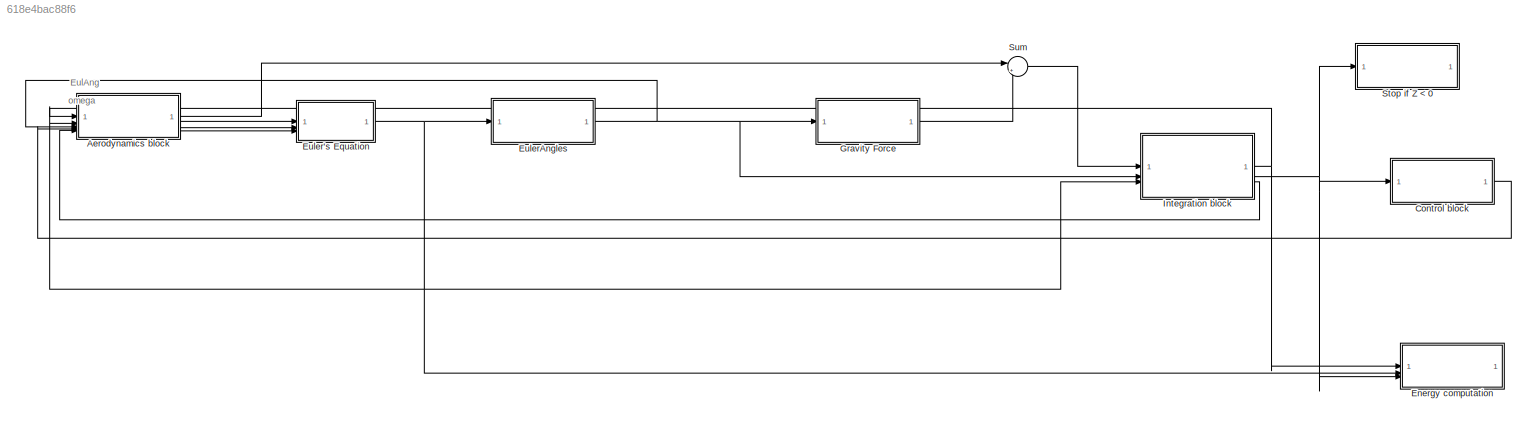
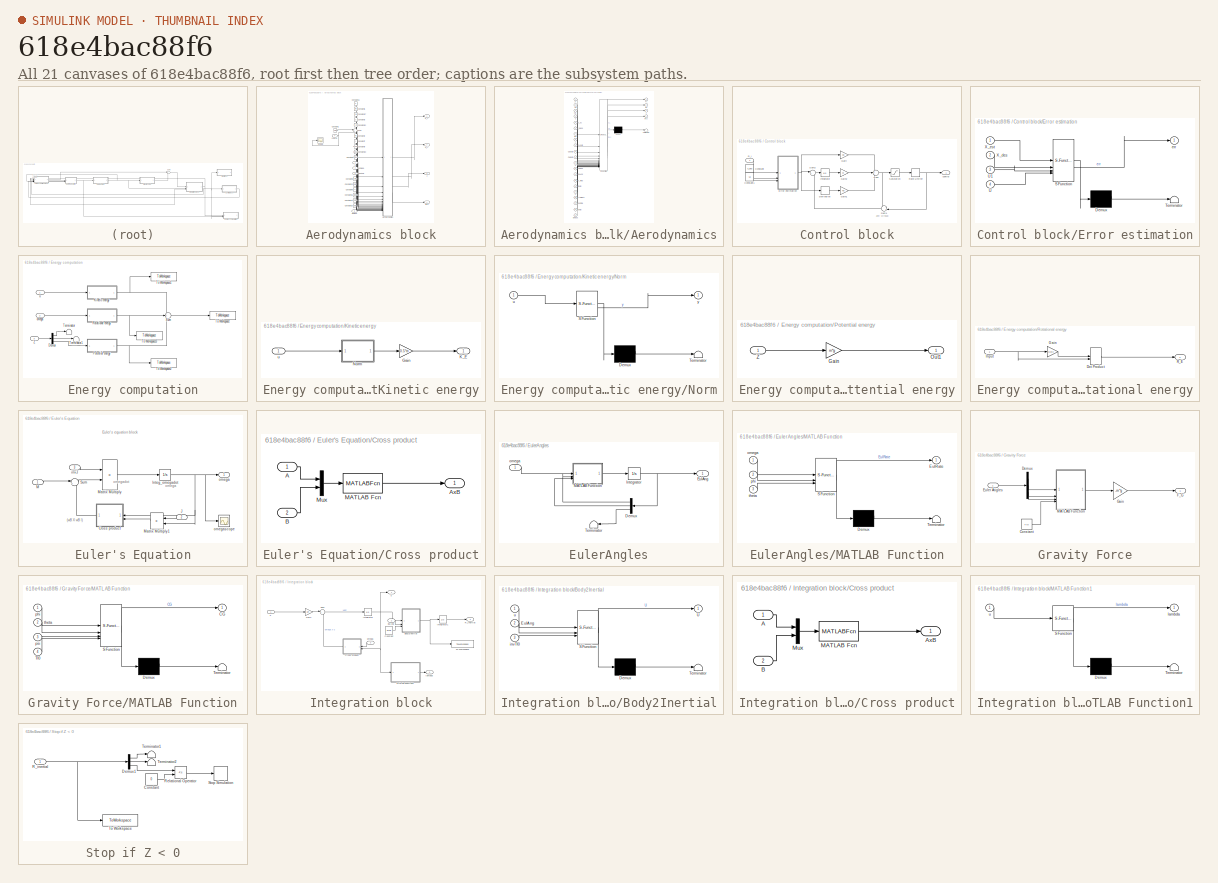
[diagram: thumbnail index - all 21 canvases of the model, root first then tree order]
MODEL slx_618e4bac88f6
KIND model
CONFIG AbsTol = auto
CONFIG EnableMultiTasking = off
CONFIG FixedStep = dt
CONFIG MaxStep = auto
CONFIG MinStep = auto
CONFIG RelTol = 1e-3
CONFIG SampleTimeConstraint = Unconstrained
CONFIG SolverName = ode4
CONFIG StartTime = 0.0
CONFIG StopTime = t
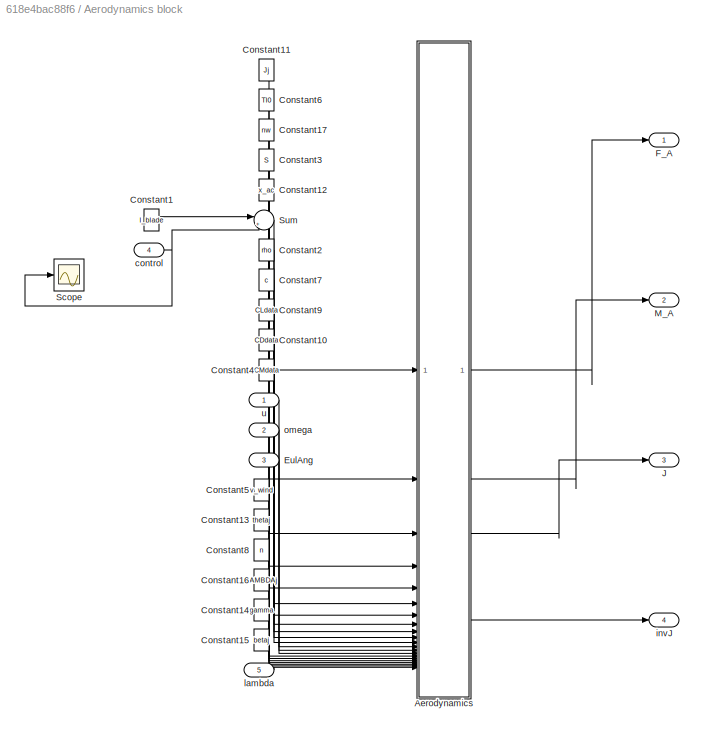
BLOCK [SubSystem] Aerodynamics block
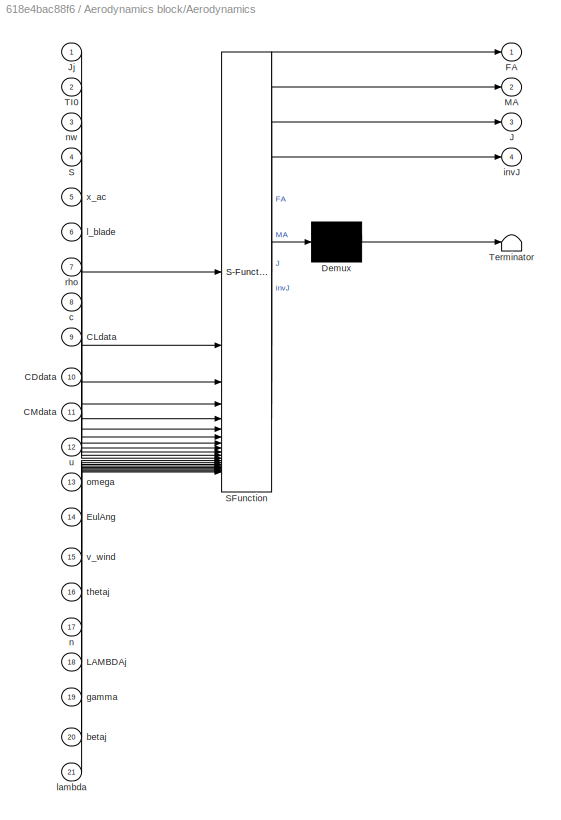
BLOCK [SubSystem] Aerodynamics block/Aerodynamics
  ErrorFcn = Stateflow.Translate.translate
  LibrarySourceBlock = simulink/User-Defined\nFunctions/MATLAB Function
  PermitHierarchicalResolution = ExplicitOnly
  SFBlockType = MATLAB Function
  TreatAsAtomicUnit = on
BLOCK [Demux] Aerodynamics block/Aerodynamics/ Demux 
  Outputs = 1
BLOCK [S-Function] Aerodynamics block/Aerodynamics/ SFunction 
  EnableBusSupport = on
  FunctionName = sf_sfun
  PortCounts = [21 5]
  SFcnIsStateOwnerBlock = off
  SFunctionDeploymentMode = off
  Tag = Stateflow S-Function 1
BLOCK [Terminator] Aerodynamics block/Aerodynamics/ Terminator 
BLOCK [Inport] Aerodynamics block/Aerodynamics/CDdata
  Port = 10
BLOCK [Inport] Aerodynamics block/Aerodynamics/CLdata
  Port = 9
BLOCK [Inport] Aerodynamics block/Aerodynamics/CMdata
  Port = 11
BLOCK [Inport] Aerodynamics block/Aerodynamics/EulAng
  Port = 14
BLOCK [Outport] Aerodynamics block/Aerodynamics/FA
BLOCK [Outport] Aerodynamics block/Aerodynamics/J
  Port = 3
BLOCK [Inport] Aerodynamics block/Aerodynamics/Jj
BLOCK [Inport] Aerodynamics block/Aerodynamics/LAMBDAj
  Port = 18
BLOCK [Outport] Aerodynamics block/Aerodynamics/MA
  Port = 2
BLOCK [Inport] Aerodynamics block/Aerodynamics/S
  Port = 4
BLOCK [Inport] Aerodynamics block/Aerodynamics/TI0
  Port = 2
BLOCK [Inport] Aerodynamics block/Aerodynamics/betaj
  Port = 20
BLOCK [Inport] Aerodynamics block/Aerodynamics/c
  Port = 8
BLOCK [Inport] Aerodynamics block/Aerodynamics/gamma
  Port = 19
BLOCK [Outport] Aerodynamics block/Aerodynamics/invJ
  Port = 4
BLOCK [Inport] Aerodynamics block/Aerodynamics/l_blade
  Port = 6
BLOCK [Inport] Aerodynamics block/Aerodynamics/lambda
  Port = 21
BLOCK [Inport] Aerodynamics block/Aerodynamics/n
  Port = 17
BLOCK [Inport] Aerodynamics block/Aerodynamics/nw
  Port = 3
BLOCK [Inport] Aerodynamics block/Aerodynamics/omega
  Port = 13
BLOCK [Inport] Aerodynamics block/Aerodynamics/rho
  Port = 7
BLOCK [Inport] Aerodynamics block/Aerodynamics/thetaj
  Port = 16
BLOCK [Inport] Aerodynamics block/Aerodynamics/u
  Port = 12
BLOCK [Inport] Aerodynamics block/Aerodynamics/v_wind
  Port = 15
BLOCK [Inport] Aerodynamics block/Aerodynamics/x_ac
  Port = 5
BLOCK [Constant] Aerodynamics block/Constant1
  Value = l_blade
BLOCK [Constant] Aerodynamics block/Constant10
  Value = CDdata
BLOCK [Constant] Aerodynamics block/Constant11
  Value = Jj
BLOCK [Constant] Aerodynamics block/Constant12
  Value = x_ac
BLOCK [Constant] Aerodynamics block/Constant13
  Value = thetaj
BLOCK [Constant] Aerodynamics block/Constant14
  Value = gamma
BLOCK [Constant] Aerodynamics block/Constant15
  Value = betaj
BLOCK [Constant] Aerodynamics block/Constant16
  Value = LAMBDAj
BLOCK [Constant] Aerodynamics block/Constant17
  Value = nw
BLOCK [Constant] Aerodynamics block/Constant2
  Value = rho
BLOCK [Constant] Aerodynamics block/Constant3
  Value = S
BLOCK [Constant] Aerodynamics block/Constant4
  Value = CMdata
BLOCK [Constant] Aerodynamics block/Constant5
  Value = v_wind
BLOCK [Constant] Aerodynamics block/Constant6
  Value = TI0
BLOCK [Constant] Aerodynamics block/Constant7
  Value = c
BLOCK [Constant] Aerodynamics block/Constant8
  Value = n
BLOCK [Constant] Aerodynamics block/Constant9
  Value = CLdata
BLOCK [Inport] Aerodynamics block/EulAng
  Port = 3
BLOCK [Outport] Aerodynamics block/F_A
BLOCK [Outport] Aerodynamics block/J
  Port = 3
BLOCK [Outport] Aerodynamics block/M_A
  Port = 2
BLOCK [Scope] Aerodynamics block/Scope
  Floating = off
  NumInputPorts = 1
  ScopeSpecificationString = Simulink.scopes.TimeScopeBlockCfg('CurrentConfiguration', extmgr.ConfigurationSet(extmgr.Configuration('Core','General UI',true),extmgr.Configuration('Core','Source UI',true),extmgr.Configuration('Sources','WiredSimulink',true,'DataLoggingVariableName','ScopeData1'),extmgr.Configuration('Visuals','Time Domain',true,'SerializedDisplays',{struct('MinYLimReal','-1.00000','MaxYLimReal','1.00000','YLab...<+1399ch>
BLOCK [Sum] Aerodynamics block/Sum
  Inputs = |++
BLOCK [Inport] Aerodynamics block/control
  Port = 4
BLOCK [Outport] Aerodynamics block/invJ
  Port = 4
BLOCK [Inport] Aerodynamics block/lambda
  Port = 5
BLOCK [Inport] Aerodynamics block/omega
  Port = 2
BLOCK [Inport] Aerodynamics block/u
BLOCK [SubSystem] Control block
BLOCK [Constant] Control block/Constant
  Value = X_des
BLOCK [Constant] Control block/Constant1
  Value = U1
BLOCK [Derivative] Control block/Derivative
BLOCK [SubSystem] Control block/Error estimation
  ErrorFcn = Stateflow.Translate.translate
  LibrarySourceBlock = simulink/User-Defined\nFunctions/MATLAB Function
  PermitHierarchicalResolution = ExplicitOnly
  SFBlockType = MATLAB Function
  TreatAsAtomicUnit = on
BLOCK [Demux] Control block/Error estimation/ Demux 
  Outputs = 1
BLOCK [S-Function] Control block/Error estimation/ SFunction 
  EnableBusSupport = on
  FunctionName = sf_sfun
  PortCounts = [4 2]
  SFcnIsStateOwnerBlock = off
  SFunctionDeploymentMode = off
  Tag = Stateflow S-Function 5
BLOCK [Terminator] Control block/Error estimation/ Terminator 
BLOCK [Inport] Control block/Error estimation/U
  Port = 4
BLOCK [Inport] Control block/Error estimation/U1
  Port = 3
BLOCK [Inport] Control block/Error estimation/X_des
  Port = 2
BLOCK [Inport] Control block/Error estimation/X_est
BLOCK [Outport] Control block/Error estimation/err
BLOCK [Gain] Control block/Gain
  Gain = Kp
BLOCK [Gain] Control block/Gain1
  Gain = Kd
BLOCK [Gain] Control block/Gain2
  Gain = Ki
BLOCK [Integrator] Control block/Integrator
  LimitOutput = on
  LowerSaturationLimit = -pi/Ki
  UpperSaturationLimit = pi/Ki
BLOCK [Inport] Control block/R_I
BLOCK [RateLimiter] Control block/Rate Limiter
  FallingSlewLimit = -l_rate
  RisingSlewLimit = l_rate
  SampleTimeMode = inherited
BLOCK [Saturate] Control block/Saturation
  LowerLimit = min_l
  UpperLimit = max_l
BLOCK [Sum] Control block/Sum
  Inputs = +++
BLOCK [Sum] Control block/Sum1
  Inputs = -+|
BLOCK [Sum] Control block/Sum2
  Inputs = |++
BLOCK [Outport] Control block/control
BLOCK [SubSystem] Energy computation
  Commented = on
BLOCK [Demux] Energy computation/Demux
  Outputs = 3
BLOCK [SubSystem] Energy computation/Kinetic energy
BLOCK [Gain] Energy computation/Kinetic energy/Gain
  Gain = 0.5*m
BLOCK [Outport] Energy computation/Kinetic energy/K_E
BLOCK [SubSystem] Energy computation/Kinetic energy/Norm
  ErrorFcn = Stateflow.Translate.translate
  LibrarySourceBlock = simulink/User-Defined\nFunctions/MATLAB Function
  PermitHierarchicalResolution = ExplicitOnly
  SFBlockType = MATLAB Function
  TreatAsAtomicUnit = on
BLOCK [Demux] Energy computation/Kinetic energy/Norm/ Demux 
  Outputs = 1
BLOCK [S-Function] Energy computation/Kinetic energy/Norm/ SFunction 
  EnableBusSupport = on
  FunctionName = sf_sfun
  PortCounts = [1 2]
  SFcnIsStateOwnerBlock = off
  SFunctionDeploymentMode = off
  Tag = Stateflow S-Function 6
BLOCK [Terminator] Energy computation/Kinetic energy/Norm/ Terminator 
BLOCK [Inport] Energy computation/Kinetic energy/Norm/u
BLOCK [Outport] Energy computation/Kinetic energy/Norm/y
BLOCK [Inport] Energy computation/Kinetic energy/u
BLOCK [SubSystem] Energy computation/Potential energy
BLOCK [Gain] Energy computation/Potential energy/Gain
  Gain = m*g
BLOCK [Outport] Energy computation/Potential energy/Out1
BLOCK [Inport] Energy computation/Potential energy/Z
BLOCK [SubSystem] Energy computation/Rotational energy
BLOCK [DotProduct] Energy computation/Rotational energy/Dot Product
  OutDataTypeStr = Inherit: Inherit via internal rule
BLOCK [Gain] Energy computation/Rotational energy/Gain
  Gain = 0.5*J
  Multiplication = Matrix(u*K)
BLOCK [Inport] Energy computation/Rotational energy/Input
BLOCK [Outport] Energy computation/Rotational energy/R_E
BLOCK [Sum] Energy computation/Sum
  Inputs = +++
BLOCK [Terminator] Energy computation/Terminator
BLOCK [Terminator] Energy computation/Terminator1
BLOCK [ToWorkspace] Energy computation/To Workspace
  FixptAsFi = on
  MaxDataPoints = inf
  SampleTime = -1
  SaveFormat = Timeseries
  VariableName = E
BLOCK [ToWorkspace] Energy computation/To Workspace1
  FixptAsFi = on
  MaxDataPoints = inf
  SampleTime = -1
  SaveFormat = Timeseries
  VariableName = K_E
BLOCK [ToWorkspace] Energy computation/To Workspace2
  FixptAsFi = on
  MaxDataPoints = inf
  SampleTime = -1
  SaveFormat = Timeseries
  VariableName = P_E
BLOCK [ToWorkspace] Energy computation/To Workspace3
  FixptAsFi = on
  MaxDataPoints = inf
  SampleTime = -1
  SaveFormat = Timeseries
  VariableName = R_E
BLOCK [Inport] Energy computation/Z
  Port = 3
BLOCK [Inport] Energy computation/omega
  Port = 2
BLOCK [Inport] Energy computation/u
BLOCK [SubSystem] Euler's Equation
BLOCK [SubSystem] Euler's Equation/Cross product
BLOCK [Inport] Euler's Equation/Cross product/A
BLOCK [Outport] Euler's Equation/Cross product/AxB
  VectorParamsAs1DForOutWhenUnconnected = off
BLOCK [Inport] Euler's Equation/Cross product/B
  Port = 2
BLOCK [MATLABFcn] Euler's Equation/Cross product/MATLAB Fcn
  MATLABFcn = cross(u(1:3),u(4:6))
BLOCK [Mux] Euler's Equation/Cross product/Mux
  DisplayOption = bar
  Inputs = 2
BLOCK [Integrator] Euler's Equation/Integ_omegadot
  InitialCondition = omega0
BLOCK [Inport] Euler's Equation/J
  Port = 2
BLOCK [Inport] Euler's Equation/M
BLOCK [Product] Euler's Equation/Matrix Multiply
  Multiplication = Matrix(*)
BLOCK [Product] Euler's Equation/Matrix Multiply1
  Multiplication = Matrix(*)
BLOCK [Sum] Euler's Equation/Sum
  Inputs = |+-
BLOCK [Inport] Euler's Equation/invJ
  Port = 3
BLOCK [Outport] Euler's Equation/omega
  VectorParamsAs1DForOutWhenUnconnected = off
BLOCK [Scope] Euler's Equation/omegascope
  Floating = off
  NumInputPorts = 1
  ScopeSpecificationString = Simulink.scopes.TimeScopeBlockCfg('CurrentConfiguration', extmgr.ConfigurationSet(extmgr.Configuration('Core','General UI',true),extmgr.Configuration('Core','Source UI',true),extmgr.Configuration('Sources','WiredSimulink',true,'DataLoggingVariableName','ScopeData1'),extmgr.Configuration('Visuals','Time Domain',true,'SerializedDisplays',{struct('MinYLimReal','-16.53032','MaxYLimReal','75.05612','YL...<+1558ch>
BLOCK [SubSystem] EulerAngles
BLOCK [Demux] EulerAngles/Demux
  Outputs = 3
BLOCK [Outport] EulerAngles/EulAng
BLOCK [Integrator] EulerAngles/Integrator
  InitialCondition = Eul0
BLOCK [SubSystem] EulerAngles/MATLAB Function
  ErrorFcn = Stateflow.Translate.translate
  LibrarySourceBlock = simulink/User-Defined\nFunctions/MATLAB Function
  PermitHierarchicalResolution = ExplicitOnly
  SFBlockType = MATLAB Function
  TreatAsAtomicUnit = on
BLOCK [Demux] EulerAngles/MATLAB Function/ Demux 
  Outputs = 1
BLOCK [S-Function] EulerAngles/MATLAB Function/ SFunction 
  EnableBusSupport = on
  FunctionName = sf_sfun
  PortCounts = [3 2]
  SFcnIsStateOwnerBlock = off
  SFunctionDeploymentMode = off
  Tag = Stateflow S-Function 4
BLOCK [Terminator] EulerAngles/MATLAB Function/ Terminator 
BLOCK [Outport] EulerAngles/MATLAB Function/EulRate
BLOCK [Inport] EulerAngles/MATLAB Function/omega
BLOCK [Inport] EulerAngles/MATLAB Function/phi
  Port = 2
BLOCK [Inport] EulerAngles/MATLAB Function/theta
  Port = 3
BLOCK [Terminator] EulerAngles/Terminator
BLOCK [Inport] EulerAngles/omega
BLOCK [SubSystem] Gravity Force
BLOCK [Constant] Gravity Force/Constant
  Value = TI0
BLOCK [Demux] Gravity Force/Demux
  Outputs = 3
BLOCK [Inport] Gravity Force/Euler Angles
BLOCK [Outport] Gravity Force/F_G
BLOCK [Gain] Gravity Force/Gain
  Gain = -m*g
BLOCK [SubSystem] Gravity Force/MATLAB Function
  ErrorFcn = Stateflow.Translate.translate
  LibrarySourceBlock = simulink/User-Defined\nFunctions/MATLAB Function
  PermitHierarchicalResolution = ExplicitOnly
  SFBlockType = MATLAB Function
  TreatAsAtomicUnit = on
BLOCK [Demux] Gravity Force/MATLAB Function/ Demux 
  Outputs = 1
BLOCK [S-Function] Gravity Force/MATLAB Function/ SFunction 
  EnableBusSupport = on
  FunctionName = sf_sfun
  PortCounts = [4 2]
  SFcnIsStateOwnerBlock = off
  SFunctionDeploymentMode = off
  Tag = Stateflow S-Function 2
BLOCK [Terminator] Gravity Force/MATLAB Function/ Terminator 
BLOCK [Outport] Gravity Force/MATLAB Function/CG
BLOCK [Inport] Gravity Force/MATLAB Function/TI0
  Port = 4
BLOCK [Inport] Gravity Force/MATLAB Function/phi
BLOCK [Inport] Gravity Force/MATLAB Function/psi
  Port = 3
BLOCK [Inport] Gravity Force/MATLAB Function/theta
  Port = 2
BLOCK [SubSystem] Integration block
BLOCK [SubSystem] Integration block/Body2Inertial
  ErrorFcn = Stateflow.Translate.translate
  LibrarySourceBlock = simulink/User-Defined\nFunctions/MATLAB Function
  PermitHierarchicalResolution = ExplicitOnly
  SFBlockType = MATLAB Function
  TreatAsAtomicUnit = on
BLOCK [Demux] Integration block/Body2Inertial/ Demux 
  Outputs = 1
BLOCK [S-Function] Integration block/Body2Inertial/ SFunction 
  EnableBusSupport = on
  FunctionName = sf_sfun
  PortCounts = [3 2]
  SFcnIsStateOwnerBlock = off
  SFunctionDeploymentMode = off
  Tag = Stateflow S-Function 3
BLOCK [Terminator] Integration block/Body2Inertial/ Terminator 
BLOCK [Inport] Integration block/Body2Inertial/EulAng
  Port = 2
BLOCK [Outport] Integration block/Body2Inertial/U
BLOCK [Inport] Integration block/Body2Inertial/invTI0
  Port = 3
BLOCK [Inport] Integration block/Body2Inertial/u
BLOCK [Constant] Integration block/Constant
  Value = invTI0
BLOCK [SubSystem] Integration block/Cross product
BLOCK [Inport] Integration block/Cross product/A
BLOCK [Outport] Integration block/Cross product/AxB
  VectorParamsAs1DForOutWhenUnconnected = off
BLOCK [Inport] Integration block/Cross product/B
  Port = 2
BLOCK [MATLABFcn] Integration block/Cross product/MATLAB Fcn
  MATLABFcn = cross(u(1:3),u(4:6))
BLOCK [Mux] Integration block/Cross product/Mux
  DisplayOption = bar
  Inputs = 2
BLOCK [Inport] Integration block/EulAng
  Port = 2
BLOCK [Inport] Integration block/F
BLOCK [Gain] Integration block/Gain
  Gain = 1./m
BLOCK [Integrator] Integration block/Integrator
  InitialCondition = u0
BLOCK [Integrator] Integration block/Integrator1
  InitialCondition = R_pos0
BLOCK [SubSystem] Integration block/MATLAB Function1
  ErrorFcn = Stateflow.Translate.translate
  LibrarySourceBlock = simulink/User-Defined\nFunctions/MATLAB Function
  PermitHierarchicalResolution = ExplicitOnly
  SFBlockType = MATLAB Function
  TreatAsAtomicUnit = on
BLOCK [Demux] Integration block/MATLAB Function1/ Demux 
  Outputs = 1
BLOCK [S-Function] Integration block/MATLAB Function1/ SFunction 
  EnableBusSupport = on
  FunctionName = sf_sfun
  PortCounts = [1 2]
  SFcnIsStateOwnerBlock = off
  SFunctionDeploymentMode = off
  Tag = Stateflow S-Function 7
BLOCK [Terminator] Integration block/MATLAB Function1/ Terminator 
BLOCK [Outport] Integration block/MATLAB Function1/lambda
BLOCK [Inport] Integration block/MATLAB Function1/u
BLOCK [Outport] Integration block/R_inertial
  Port = 2
BLOCK [Sum] Integration block/Sum
  Inputs = |+-
BLOCK [ToWorkspace] Integration block/To Workspace
  FixptAsFi = on
  MaxDataPoints = inf
  SampleTime = -1
  VariableName = U
BLOCK [Outport] Integration block/lambda
  Port = 3
BLOCK [Inport] Integration block/omega
  Port = 3
BLOCK [Outport] Integration block/u
BLOCK [SubSystem] Stop if Z < 0
BLOCK [Constant] Stop if Z < 0/Constant
  Value = 0
BLOCK [Demux] Stop if Z < 0/Demux1
  Outputs = 3
BLOCK [Inport] Stop if Z < 0/R_inertial
BLOCK [RelationalOperator] Stop if Z < 0/Relational Operator
  InputSameDT = off
  Operator = <=
  OutDataTypeStr = boolean
  RndMeth = Simplest
BLOCK [Stop] Stop if Z < 0/Stop Simulation
BLOCK [Terminator] Stop if Z < 0/Terminator1
BLOCK [Terminator] Stop if Z < 0/Terminator2
BLOCK [ToWorkspace] Stop if Z < 0/To Workspace
  FixptAsFi = on
  MaxDataPoints = inf
  SampleTime = -1
  VariableName = R_inertial
BLOCK [Sum] Sum
  Inputs = |++
ANNOTATION (root): EulAng
ANNOTATION (root): omega
ANNOTATION Control block: anti windup
ANNOTATION Euler's Equation: omegadot
ANNOTATION Euler's Equation: Euler's equation block
ANNOTATION Euler's Equation: (wB X wB I)
ANNOTATION Euler's Equation: omega
LINE Aerodynamics block/Aerodynamics:1 -> Aerodynamics block/F_A:1
LINE Aerodynamics block/Aerodynamics:2 -> Aerodynamics block/M_A:1
LINE Aerodynamics block/Aerodynamics:3 -> Aerodynamics block/J:1
LINE Aerodynamics block/Aerodynamics:4 -> Aerodynamics block/invJ:1
LINE Aerodynamics block/Constant10:1 -> Aerodynamics block/Aerodynamics:10
LINE Aerodynamics block/Constant11:1 -> Aerodynamics block/Aerodynamics:1
LINE Aerodynamics block/Constant12:1 -> Aerodynamics block/Aerodynamics:5
LINE Aerodynamics block/Constant13:1 -> Aerodynamics block/Aerodynamics:16
LINE Aerodynamics block/Constant14:1 -> Aerodynamics block/Aerodynamics:19
LINE Aerodynamics block/Constant15:1 -> Aerodynamics block/Aerodynamics:20
LINE Aerodynamics block/Constant16:1 -> Aerodynamics block/Aerodynamics:18
LINE Aerodynamics block/Constant17:1 -> Aerodynamics block/Aerodynamics:3
LINE Aerodynamics block/Constant1:1 -> Aerodynamics block/Sum:1
LINE Aerodynamics block/Constant2:1 -> Aerodynamics block/Aerodynamics:7
LINE Aerodynamics block/Constant3:1 -> Aerodynamics block/Aerodynamics:4
LINE Aerodynamics block/Constant4:1 -> Aerodynamics block/Aerodynamics:11
LINE Aerodynamics block/Constant5:1 -> Aerodynamics block/Aerodynamics:15
LINE Aerodynamics block/Constant6:1 -> Aerodynamics block/Aerodynamics:2
LINE Aerodynamics block/Constant7:1 -> Aerodynamics block/Aerodynamics:8
LINE Aerodynamics block/Constant8:1 -> Aerodynamics block/Aerodynamics:17
LINE Aerodynamics block/Constant9:1 -> Aerodynamics block/Aerodynamics:9
LINE Aerodynamics block/EulAng:1 -> Aerodynamics block/Aerodynamics:14
LINE Aerodynamics block/Sum:1 -> Aerodynamics block/Aerodynamics:6
NET Aerodynamics block/control:1 -> Aerodynamics block/Scope:1, Aerodynamics block/Sum:2
LINE Aerodynamics block/lambda:1 -> Aerodynamics block/Aerodynamics:21
LINE Aerodynamics block/omega:1 -> Aerodynamics block/Aerodynamics:13
LINE Aerodynamics block/u:1 -> Aerodynamics block/Aerodynamics:12
LINE Aerodynamics block:1 -> Sum:1
LINE Aerodynamics block:2 -> Euler's Equation:1
LINE Aerodynamics block:3 -> Euler's Equation:2
LINE Aerodynamics block:4 -> Euler's Equation:3
LINE Control block/Constant1:1 -> Control block/Error estimation:3
LINE Control block/Constant:1 -> Control block/Error estimation:2
LINE Control block/Derivative:1 -> Control block/Gain1:1
NET Control block/Error estimation:1 -> Control block/Derivative:1, Control block/Gain:1, Control block/Sum2:1
LINE Control block/Gain1:1 -> Control block/Sum:3
LINE Control block/Gain2:1 -> Control block/Sum:2
LINE Control block/Gain:1 -> Control block/Sum:1
LINE Control block/Integrator:1 -> Control block/Gain2:1
LINE Control block/R_I:1 -> Control block/Error estimation:1
NET Control block/Rate Limiter:1 -> Control block/Sum1:2, Control block/control:1
LINE Control block/Saturation:1 -> Control block/Rate Limiter:1
LINE Control block/Sum1:1 -> Control block/Sum2:2
LINE Control block/Sum2:1 -> Control block/Integrator:1
NET Control block/Sum:1 -> Control block/Saturation:1, Control block/Sum1:1
LINE Control block:1 -> Aerodynamics block:4
LINE Energy computation/Demux:1 -> Energy computation/Terminator:1
LINE Energy computation/Demux:2 -> Energy computation/Terminator1:1
LINE Energy computation/Demux:3 -> Energy computation/Potential energy:1
LINE Energy computation/Kinetic energy/Gain:1 -> Energy computation/Kinetic energy/K_E:1
LINE Energy computation/Kinetic energy/Norm:1 -> Energy computation/Kinetic energy/Gain:1
LINE Energy computation/Kinetic energy/u:1 -> Energy computation/Kinetic energy/Norm:1
NET Energy computation/Kinetic energy:1 -> Energy computation/Sum:1, Energy computation/To Workspace1:1
LINE Energy computation/Potential energy/Gain:1 -> Energy computation/Potential energy/Out1:1
LINE Energy computation/Potential energy/Z:1 -> Energy computation/Potential energy/Gain:1
NET Energy computation/Potential energy:1 -> Energy computation/Sum:3, Energy computation/To Workspace2:1
LINE Energy computation/Rotational energy/Dot Product:1 -> Energy computation/Rotational energy/R_E:1
LINE Energy computation/Rotational energy/Gain:1 -> Energy computation/Rotational energy/Dot Product:1
NET Energy computation/Rotational energy/Input:1 -> Energy computation/Rotational energy/Dot Product:2, Energy computation/Rotational energy/Gain:1
NET Energy computation/Rotational energy:1 -> Energy computation/Sum:2, Energy computation/To Workspace3:1
LINE Energy computation/Sum:1 -> Energy computation/To Workspace:1
LINE Energy computation/Z:1 -> Energy computation/Demux:1
LINE Energy computation/omega:1 -> Energy computation/Rotational energy:1
LINE Energy computation/u:1 -> Energy computation/Kinetic energy:1
LINE Euler's Equation/Cross product/A:1 -> Euler's Equation/Cross product/Mux:1
LINE Euler's Equation/Cross product/B:1 -> Euler's Equation/Cross product/Mux:2
LINE Euler's Equation/Cross product/MATLAB Fcn:1 -> Euler's Equation/Cross product/AxB:1
LINE Euler's Equation/Cross product/Mux:1 -> Euler's Equation/Cross product/MATLAB Fcn:1
LINE Euler's Equation/Cross product:1 -> Euler's Equation/Sum:2
NET Euler's Equation/Integ_omegadot:1 -> Euler's Equation/Cross product:1, Euler's Equation/Matrix Multiply1:2, Euler's Equation/omega:1, Euler's Equation/omegascope:1
LINE Euler's Equation/J:1 -> Euler's Equation/Matrix Multiply1:1
LINE Euler's Equation/M:1 -> Euler's Equation/Sum:1
LINE Euler's Equation/Matrix Multiply1:1 -> Euler's Equation/Cross product:2
LINE Euler's Equation/Matrix Multiply:1 -> Euler's Equation/Integ_omegadot:1
LINE Euler's Equation/Sum:1 -> Euler's Equation/Matrix Multiply:2
LINE Euler's Equation/invJ:1 -> Euler's Equation/Matrix Multiply:1
NET Euler's Equation:1 -> Aerodynamics block:2, Energy computation:2, EulerAngles:1, Integration block:3
LINE EulerAngles/Demux:1 -> EulerAngles/MATLAB Function:2
LINE EulerAngles/Demux:2 -> EulerAngles/MATLAB Function:3
LINE EulerAngles/Demux:3 -> EulerAngles/Terminator:1
NET EulerAngles/Integrator:1 -> EulerAngles/Demux:1, EulerAngles/EulAng:1
LINE EulerAngles/MATLAB Function:1 -> EulerAngles/Integrator:1
LINE EulerAngles/omega:1 -> EulerAngles/MATLAB Function:1
NET EulerAngles:1 -> Aerodynamics block:3, Gravity Force:1, Integration block:2
LINE Gravity Force/Constant:1 -> Gravity Force/MATLAB Function:4
LINE Gravity Force/Demux:1 -> Gravity Force/MATLAB Function:1
LINE Gravity Force/Demux:2 -> Gravity Force/MATLAB Function:2
LINE Gravity Force/Demux:3 -> Gravity Force/MATLAB Function:3
LINE Gravity Force/Euler Angles:1 -> Gravity Force/Demux:1
LINE Gravity Force/Gain:1 -> Gravity Force/F_G:1
LINE Gravity Force/MATLAB Function:1 -> Gravity Force/Gain:1
LINE Gravity Force:1 -> Sum:2
NET Integration block/Body2Inertial:1 -> Integration block/Integrator1:1, Integration block/To Workspace:1
LINE Integration block/Constant:1 -> Integration block/Body2Inertial:3
LINE Integration block/Cross product/A:1 -> Integration block/Cross product/Mux:1
LINE Integration block/Cross product/B:1 -> Integration block/Cross product/Mux:2
LINE Integration block/Cross product/MATLAB Fcn:1 -> Integration block/Cross product/AxB:1
LINE Integration block/Cross product/Mux:1 -> Integration block/Cross product/MATLAB Fcn:1
LINE Integration block/Cross product:1 -> Integration block/Sum:2
LINE Integration block/EulAng:1 -> Integration block/Body2Inertial:2
LINE Integration block/F:1 -> Integration block/Gain:1
LINE Integration block/Gain:1 -> Integration block/Sum:1
LINE Integration block/Integrator1:1 -> Integration block/R_inertial:1
NET Integration block/Integrator:1 -> Integration block/Body2Inertial:1, Integration block/Cross product:2, Integration block/MATLAB Function1:1, Integration block/u:1
LINE Integration block/MATLAB Function1:1 -> Integration block/lambda:1
LINE Integration block/Sum:1 -> Integration block/Integrator:1
LINE Integration block/omega:1 -> Integration block/Cross product:1
NET Integration block:1 -> Aerodynamics block:1, Energy computation:1
NET Integration block:2 -> Control block:1, Energy computation:3, Stop if Z < 0:1
LINE Integration block:3 -> Aerodynamics block:5
LINE Stop if Z < 0/Constant:1 -> Stop if Z < 0/Relational Operator:2
LINE Stop if Z < 0/Demux1:1 -> Stop if Z < 0/Terminator1:1
LINE Stop if Z < 0/Demux1:2 -> Stop if Z < 0/Terminator2:1
LINE Stop if Z < 0/Demux1:3 -> Stop if Z < 0/Relational Operator:1
NET Stop if Z < 0/R_inertial:1 -> Stop if Z < 0/Demux1:1, Stop if Z < 0/To Workspace:1
LINE Stop if Z < 0/Relational Operator:1 -> Stop if Z < 0/Stop Simulation:1
LINE Sum:1 -> Integration block:1
note: NET lines group one-source signal fan-out (src -> all destinations, sorted); 1:1 wires keep LINE
CHART Control block/Error estimation states=1 transitions=1
  STATE_LABEL 'eML_blk_kernel()'
  STATE_LABEL 'SCRIPT:\nfunction err = fcn(X_est,X_des, U1, U)\n\npersistent i_old % Having i as a persistent variable allows to look for the closest distance between the boomerang and the reference path;\n% This way, the final target will always be the final point of the\n% returning path (the thrower)\nif isempty(i_old)\n    i_old = 1;\nend\n\n% Find which desired trajectory point is nearest to the boomerang and\n% compu...<+800ch>'
CHART Energy computation/Kinetic energy/Norm states=1 transitions=1
  STATE_LABEL 'eML_blk_kernel()'
  STATE_LABEL 'SCRIPT:\nfunction y = fcn(u)\n\ny = norm(u)^2;\n'
CHART Integration block/MATLAB Function1 states=1 transitions=1
  STATE_LABEL 'eML_blk_kernel()'
  STATE_LABEL 'SCRIPT:\nfunction lambda = fcn(u)\n\nux = u(1);\nuy = u(2);\n\nlambda = -atan2(uy,ux);'
CHART Aerodynamics block/Aerodynamics states=1 transitions=1
  STATE_LABEL 'eML_blk_kernel()'
  STATE_LABEL "SCRIPT:\nfunction [FA, MA, J, invJ] = fcn(Jj, TI0, nw, S, x_ac, l_blade, rho, c, CLdata, CDdata, CMdata,u, omega, EulAng, v_wind, thetaj, n, LAMBDAj, gamma, betaj, lambda)\nn = 50; % Number of intervals\nn = n + 1; \nl_integrate = linspace(0,l_blade,n)';\n\nphi = EulAng(1);\ntheta = EulAng(2);\npsi = EulAng(3);\n\nR01 = [1, 0, 0; 0, cos(phi), sin(phi); 0, -sin(phi), cos(phi)];\nR02 = [cos(theta), 0, -sin(the...<+2727ch>"
CHART Gravity Force/MATLAB Function states=1 transitions=1
  STATE_LABEL 'eML_blk_kernel()'
  STATE_LABEL 'SCRIPT:\nfunction CG = fcn(phi, theta, psi, TI0)\nR01 = [\n    1, 0, 0;\n    0, cos(phi), sin(phi);\n    0, -sin(phi), cos(phi)\n    ];\nR02 = [\n    cos(theta), 0, -sin(theta);\n    0, 1, 0;\n    sin(theta), 0, cos(theta)\n];\nR03 = [\n    cos(psi), sin(psi), 0;\n    -sin(psi), cos(psi), 0;\n    0, 0, 1\n];\nT0 = R01*R02*R03;\n\nCG = T0*TI0*[0; 0; 1];\n'
CHART Integration block/Body2Inertial states=1 transitions=1
  STATE_LABEL 'eML_blk_kernel()'
  STATE_LABEL 'SCRIPT:\nfunction U = fcn(u, EulAng, invTI0)\nphi = EulAng(1);\ntheta = EulAng(2);\npsi = EulAng(3);\n\nR01 = [\n    1, 0, 0;\n    0, cos(phi), sin(phi);\n    0, -sin(phi), cos(phi)\n    ];\nR02 = [\n    cos(theta), 0, -sin(theta);\n    0, 1, 0;\n    sin(theta), 0, cos(theta)\n];\nR03 = [\n    cos(psi), sin(psi), 0;\n    -sin(psi), cos(psi), 0;\n    0, 0, 1\n];\nT0 = R01*R02*R03;\ninvT0 = transpose(T0);\nU = invTI0*invT...<+5ch>'
CHART EulerAngles/MATLAB Function states=1 transitions=1
  STATE_LABEL 'eML_blk_kernel()'
  STATE_LABEL 'SCRIPT:\nfunction EulRate = fcn(omega, phi, theta)\n\nphidot = omega(1) + omega(2)*sin(phi)*tan(theta) + omega(3)*cos(phi)*tan(theta);\nthetadot = omega(2)*cos(phi) - omega(3)*sin(phi);\npsidot = omega(2)*sin(phi)/cos(theta) + omega(3)*cos(phi)/cos(theta);\n\nEulRate = [phidot; thetadot; psidot];\n'
CHART  states=0 transitions=0
CHART  states=0 transitions=0
CHART  states=0 transitions=0
CHART  states=0 transitions=0
CHART  states=0 transitions=0
CHART  states=0 transitions=0
CHART  states=0 transitions=0
